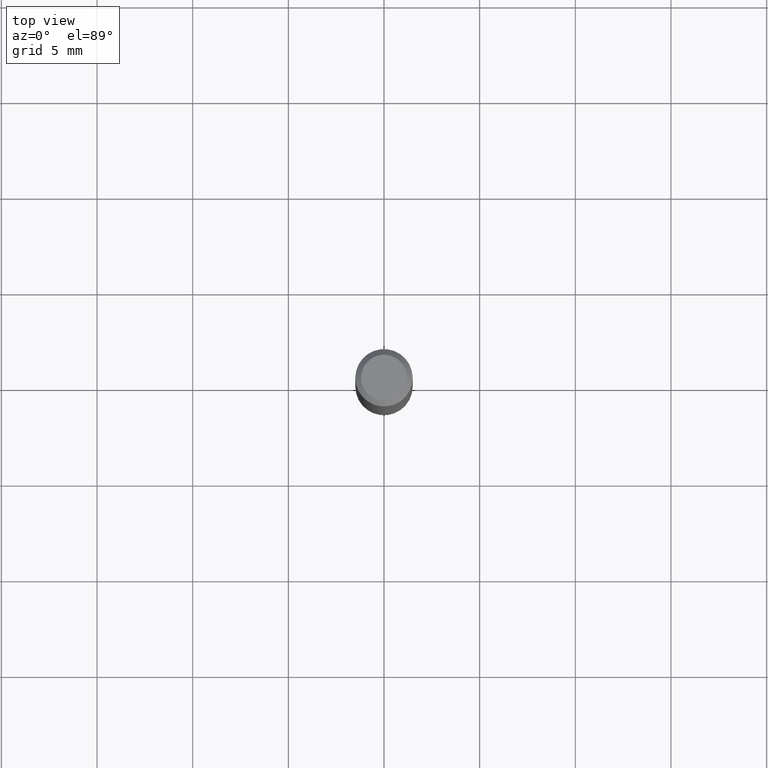
[diagram: clean part render]
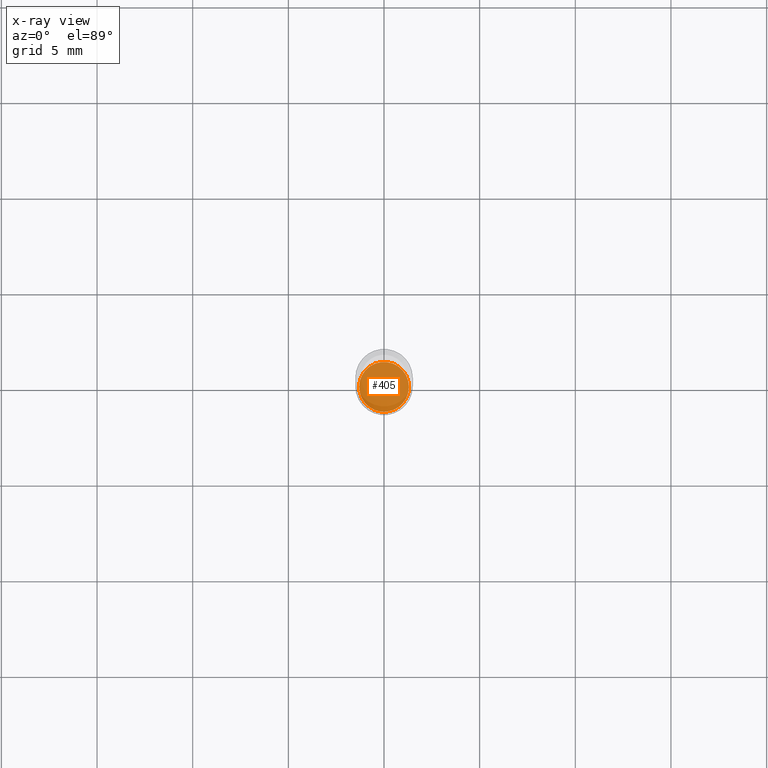
[diagram: x-ray — body ghosted, one internal face saturated and labeled with its STEP entity id]
A machine part, top view, then the same camera in x-ray: the body is ghosted and one INTERNAL B-rep face — a face not visible from any outside direction — is saturated and labeled: STEP entity #405.
In plain terms, the highlighted planar face has unit normal (-0, 0, 1).
Its self-contained STEP definition (entity closure, byte-faithful):
#4 = DIRECTION ( 'NONE',  ( 1.000000000000000000, -6.982962677686271444E-15, 0.000000000000000000 ) ) ;
#9 = EDGE_CURVE ( 'NONE', #220, #147, #323, .T. ) ;
#39 = DIRECTION ( 'NONE',  ( 1.000000000000000000, -6.982962677686271444E-15, 0.000000000000000000 ) ) ;
#48 = CARTESIAN_POINT ( 'NONE',  ( 2.676565608369632355E-29, -3.821426325363822773E-15, -1.094500000000000028 ) ) ;
#147 = VERTEX_POINT ( 'NONE', #263 ) ;
#176 = DIRECTION ( 'NONE',  ( 1.000000000000000000, -6.982962677686265922E-15, 4.876176775795935793E-29 ) ) ;
#212 = AXIS2_PLACEMENT_3D ( 'NONE', #435, #346, #4 ) ;
#220 = VERTEX_POINT ( 'NONE', #248 ) ;
#233 = FACE_OUTER_BOUND ( 'NONE', #287, .T. ) ;
#248 = CARTESIAN_POINT ( 'NONE',  ( -0.05124999999999999695, -3.454623946112660495E-15, -1.094500000000000028 ) ) ;
#263 = CARTESIAN_POINT ( 'NONE',  ( 0.05124999999999999695, -4.179303162595244416E-15, -1.094500000000000028 ) ) ;
#277 = PLANE ( 'NONE',  #366 ) ;
#287 = EDGE_LOOP ( 'NONE', ( #338, #449 ) ) ;
#323 = CIRCLE ( 'NONE', #360, 0.05124999999999999695 ) ;
#338 = ORIENTED_EDGE ( 'NONE', *, *, #408, .F. ) ;
#346 = DIRECTION ( 'NONE',  ( -2.445468806185136597E-29, 3.491481338843145583E-15, 1.000000000000000000 ) ) ;
#360 = AXIS2_PLACEMENT_3D ( 'NONE', #48, #457, #39 ) ;
#366 = AXIS2_PLACEMENT_3D ( 'NONE', #471, #380, #176 ) ;
#380 = DIRECTION ( 'NONE',  ( -2.438088387897960049E-29, 3.491481338843145188E-15, 1.000000000000000000 ) ) ;
#405 = ADVANCED_FACE ( 'NONE', ( #233 ), #277, .F. ) ;
#408 = EDGE_CURVE ( 'NONE', #147, #220, #447, .T. ) ;
#435 = CARTESIAN_POINT ( 'NONE',  ( 2.676565608369632355E-29, -3.821426325363822773E-15, -1.094500000000000028 ) ) ;
#447 = CIRCLE ( 'NONE', #212, 0.05124999999999999695 ) ;
#449 = ORIENTED_EDGE ( 'NONE', *, *, #9, .F. ) ;
#457 = DIRECTION ( 'NONE',  ( -2.445468806185136597E-29, 3.491481338843145583E-15, 1.000000000000000000 ) ) ;
#471 = CARTESIAN_POINT ( 'NONE',  ( 6.395791030270134867E-30, -6.738506939086296803E-15, -1.094500000000000028 ) ) ;